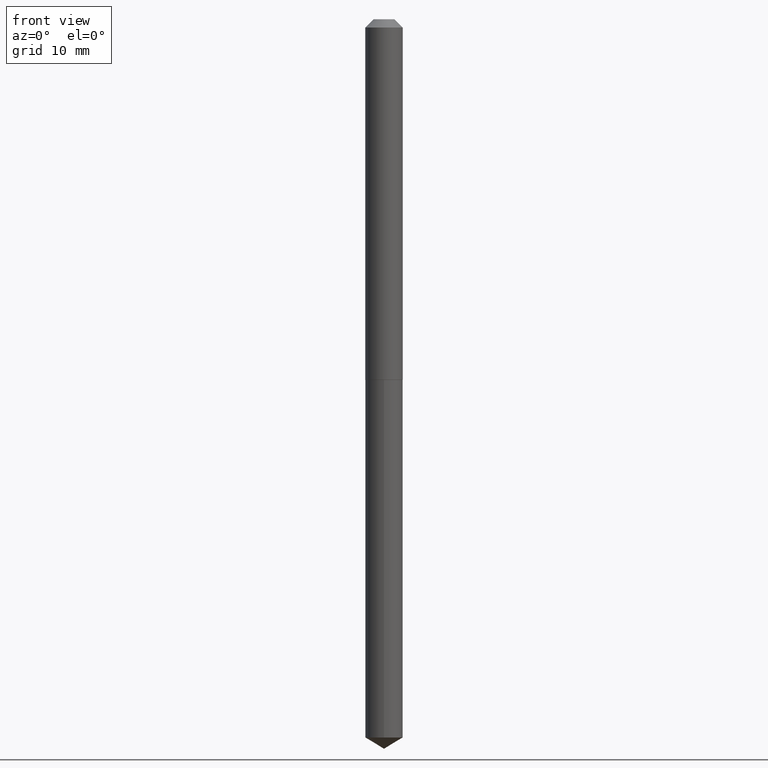
[diagram: clean part render]
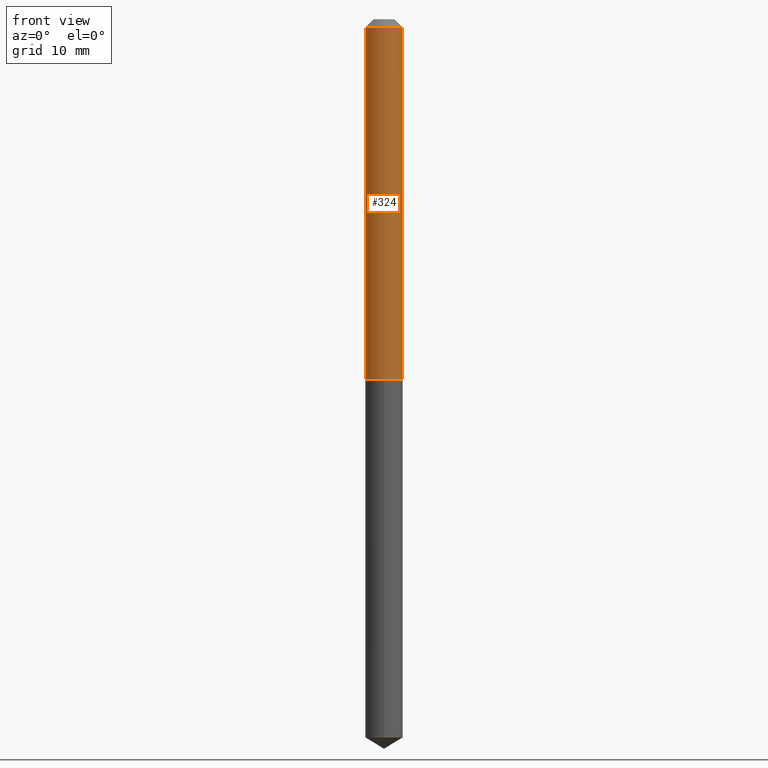
[diagram: same view with one face highlighted and labeled with its STEP entity id]
A machine part, front view. The second image highlights one B-rep face of the part: STEP entity #324.
In plain terms, the highlighted cylindrical surface (edge-blend (fillet) strip) has radius 1.7996 mm, axis along (-0, 0, 1).
Its self-contained STEP definition (entity closure, byte-faithful):
#5 = CARTESIAN_POINT ( 'NONE',  ( 3.329994873382300355E-29, -4.754350139102710568E-15, -1.361699999999999910 ) ) ;
#11 = DIRECTION ( 'NONE',  ( -2.445468806185136877E-29, 3.491481338843145188E-15, 1.000000000000000000 ) ) ;
#17 = LINE ( 'NONE', #293, #224 ) ;
#22 = CYLINDRICAL_SURFACE ( 'NONE', #177, 0.07085000000000007958 ) ;
#47 = EDGE_CURVE ( 'NONE', #279, #286, #271, .T. ) ;
#78 = ORIENTED_EDGE ( 'NONE', *, *, #229, .T. ) ;
#109 = EDGE_CURVE ( 'NONE', #279, #141, #157, .T. ) ;
#111 = DIRECTION ( 'NONE',  ( 1.000000000000000000, -6.982962677686261189E-15, 0.000000000000000000 ) ) ;
#141 = VERTEX_POINT ( 'NONE', #309 ) ;
#147 = DIRECTION ( 'NONE',  ( -2.445468806185136597E-29, 3.491481338843145583E-15, 1.000000000000000000 ) ) ;
#154 = DIRECTION ( 'NONE',  ( -2.445468806185136597E-29, 3.491481338843145583E-15, 1.000000000000000000 ) ) ;
#157 = CIRCLE ( 'NONE', #375, 0.07085000000000016285 ) ;
#161 = CARTESIAN_POINT ( 'NONE',  ( 7.642090019328601786E-31, -1.091087918388490144E-16, -0.03125000000000020123 ) ) ;
#172 = CARTESIAN_POINT ( 'NONE',  ( -0.07085000000000016285, -4.250930610816678232E-15, -1.361699999999999910 ) ) ;
#177 = AXIS2_PLACEMENT_3D ( 'NONE', #242, #154, #268 ) ;
#185 = CIRCLE ( 'NONE', #274, 0.07084999999999999631 ) ;
#195 = ORIENTED_EDGE ( 'NONE', *, *, #109, .T. ) ;
#205 = VERTEX_POINT ( 'NONE', #285 ) ;
#212 = VECTOR ( 'NONE', #249, 39.37007874015748143 ) ;
#224 = VECTOR ( 'NONE', #11, 39.37007874015748143 ) ;
#229 = EDGE_CURVE ( 'NONE', #141, #205, #17, .T. ) ;
#242 = CARTESIAN_POINT ( 'NONE',  ( 0.000000000000000000, 0.000000000000000000, 0.000000000000000000 ) ) ;
#249 = DIRECTION ( 'NONE',  ( -2.445468806185136877E-29, 3.491481338843145188E-15, 1.000000000000000000 ) ) ;
#268 = DIRECTION ( 'NONE',  ( 1.000000000000000000, -6.982962677686266711E-15, 4.876176775795935232E-29 ) ) ;
#271 = LINE ( 'NONE', #359, #212 ) ;
#272 = DIRECTION ( 'NONE',  ( -2.445468806185136597E-29, 3.491481338843145583E-15, 1.000000000000000000 ) ) ;
#274 = AXIS2_PLACEMENT_3D ( 'NONE', #161, #272, #320 ) ;
#279 = VERTEX_POINT ( 'NONE', #172 ) ;
#285 = CARTESIAN_POINT ( 'NONE',  ( 0.07084999999999999631, -6.038516975529210600E-16, -0.03125000000000020123 ) ) ;
#286 = VERTEX_POINT ( 'NONE', #379 ) ;
#291 = FACE_OUTER_BOUND ( 'NONE', #317, .T. ) ;
#293 = CARTESIAN_POINT ( 'NONE',  ( 0.07085000000000007958, -4.947429057140725510E-16, 3.454771245651424113E-30 ) ) ;
#309 = CARTESIAN_POINT ( 'NONE',  ( 0.07085000000000016285, -5.249093044816783612E-15, -1.361699999999999910 ) ) ;
#313 = EDGE_CURVE ( 'NONE', #286, #205, #185, .T. ) ;
#317 = EDGE_LOOP ( 'NONE', ( #371, #195, #78, #360 ) ) ;
#320 = DIRECTION ( 'NONE',  ( 1.000000000000000000, -6.982962677686268288E-15, 0.000000000000000000 ) ) ;
#324 = ADVANCED_FACE ( 'NONE', ( #291 ), #22, .T. ) ;
#359 = CARTESIAN_POINT ( 'NONE',  ( -0.07085000000000007958, 5.034195282860315471E-16, -3.485065511445604472E-30 ) ) ;
#360 = ORIENTED_EDGE ( 'NONE', *, *, #313, .F. ) ;
#371 = ORIENTED_EDGE ( 'NONE', *, *, #47, .F. ) ;
#375 = AXIS2_PLACEMENT_3D ( 'NONE', #5, #147, #111 ) ;
#379 = CARTESIAN_POINT ( 'NONE',  ( -0.07084999999999999631, -1.928309937184747104E-15, -0.03125000000000020123 ) ) ;